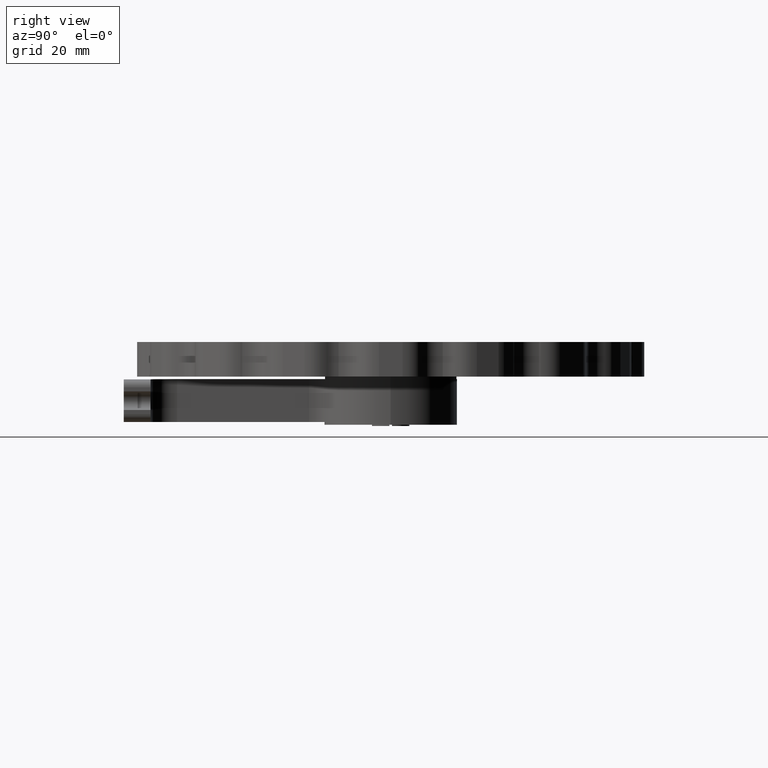
[diagram: clean part render]
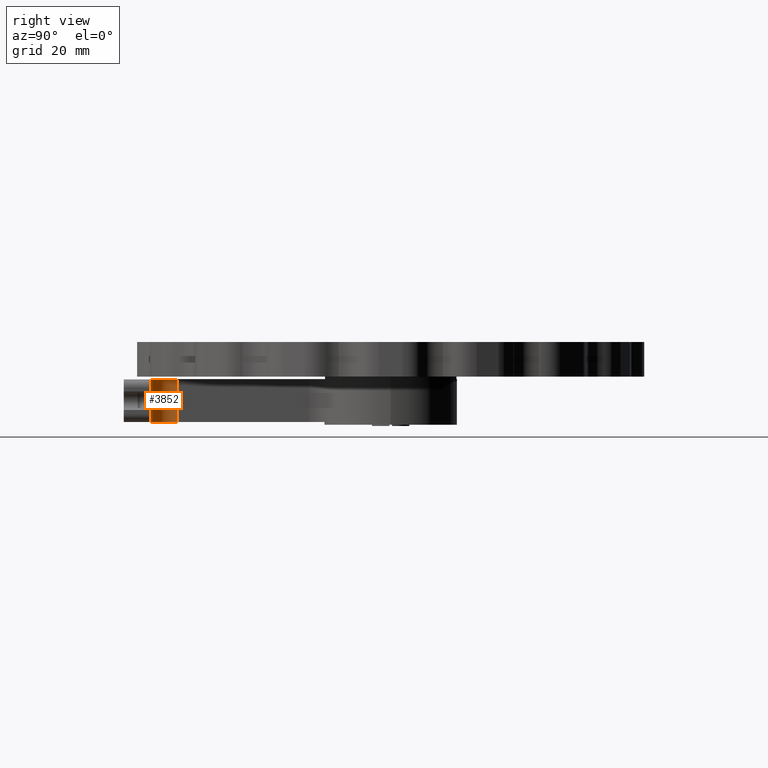
[diagram: same view with one face highlighted and labeled with its STEP entity id]
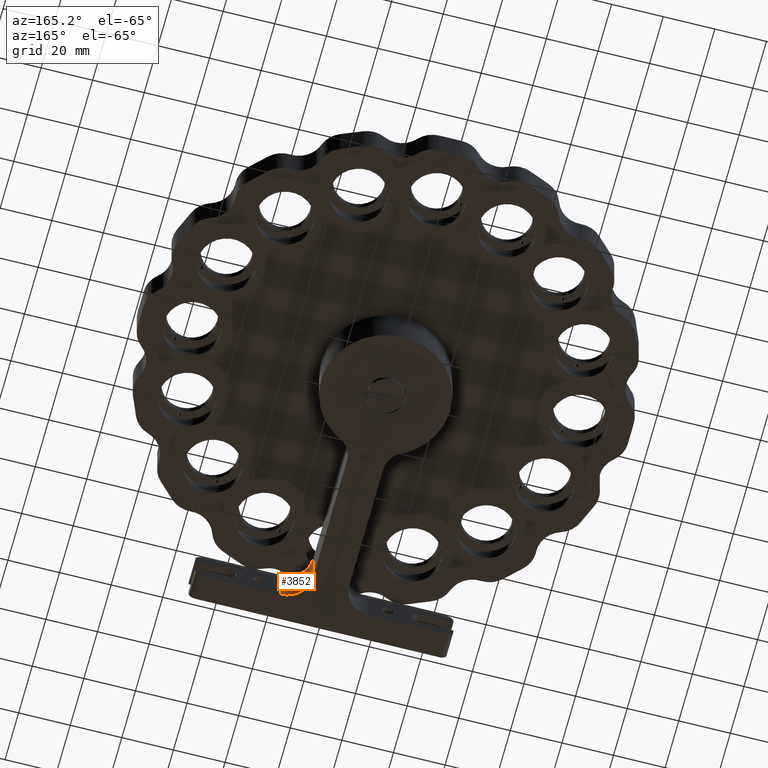
[diagram: same view with one face highlighted and labeled with its STEP entity id]
A machine part, right view. The second image highlights one B-rep face of the part: STEP entity #3852.
A second angle (auxiliary view) of the same face is appended — the face is thin or edge-on in the first view.
In plain terms, the highlighted cylindrical surface (edge-blend (fillet) strip) has radius 10 mm, axis along (0, 0, 1).
Its self-contained STEP definition (entity closure, byte-faithful):
#1642 = DIRECTION ( 'NONE',  ( 1.000000000000000000, 0.0000000000000000000, 0.0000000000000000000 ) ) ;
#3828 = AXIS2_PLACEMENT_3D ( 'NONE', #17962, #14059, #46028 ) ;
#3852 = ADVANCED_FACE ( 'NONE', ( #50735 ), #29199, .F. ) ;
#3928 = DIRECTION ( 'NONE',  ( 0.0000000000000000000, 0.0000000000000000000, 1.000000000000000000 ) ) ;
#7521 = DIRECTION ( 'NONE',  ( 1.000000000000000000, 0.0000000000000000000, 0.0000000000000000000 ) ) ;
#7605 = VECTOR ( 'NONE', #13979, 1000.000000000000000 ) ;
#11042 = ORIENTED_EDGE ( 'NONE', *, *, #20508, .F. ) ;
#12341 = CIRCLE ( 'NONE', #3828, 9.999999999999991100 ) ;
#13163 = CARTESIAN_POINT ( 'NONE',  ( 17.00000000000001400, -79.99999999999998600, -16.00000000000000000 ) ) ;
#13979 = DIRECTION ( 'NONE',  ( 0.0000000000000000000, 0.0000000000000000000, 1.000000000000000000 ) ) ;
#14059 = DIRECTION ( 'NONE',  ( -0.0000000000000000000, 0.0000000000000000000, 1.000000000000000000 ) ) ;
#14885 = ORIENTED_EDGE ( 'NONE', *, *, #24825, .F. ) ;
#15301 = AXIS2_PLACEMENT_3D ( 'NONE', #15867, #39542, #7521 ) ;
#15867 = CARTESIAN_POINT ( 'NONE',  ( 17.00000000000001400, -79.99999999999998600, -16.00000000000000000 ) ) ;
#17038 = CARTESIAN_POINT ( 'NONE',  ( 7.000000000000013300, -79.99999999999998600, 0.0000000000000000000 ) ) ;
#17602 = DIRECTION ( 'NONE',  ( -0.0000000000000000000, 0.0000000000000000000, 1.000000000000000000 ) ) ;
#17962 = CARTESIAN_POINT ( 'NONE',  ( 17.00000000000001400, -79.99999999999998600, 0.0000000000000000000 ) ) ;
#18420 = LINE ( 'NONE', #30766, #7605 ) ;
#20508 = EDGE_CURVE ( 'NONE', #35513, #31106, #37734, .T. ) ;
#23493 = LINE ( 'NONE', #48491, #46892 ) ;
#23717 = AXIS2_PLACEMENT_3D ( 'NONE', #13163, #17602, #1642 ) ;
#23912 = EDGE_CURVE ( 'NONE', #35513, #43258, #23493, .T. ) ;
#24825 = EDGE_CURVE ( 'NONE', #31106, #35987, #18420, .T. ) ;
#27470 = CARTESIAN_POINT ( 'NONE',  ( 17.00000000000001400, -89.99999999999997200, 0.0000000000000000000 ) ) ;
#27982 = ORIENTED_EDGE ( 'NONE', *, *, #23912, .T. ) ;
#29199 = CYLINDRICAL_SURFACE ( 'NONE', #15301, 9.999999999999991100 ) ;
#30766 = CARTESIAN_POINT ( 'NONE',  ( 17.00000000000001400, -89.99999999999997200, -16.00000000000000000 ) ) ;
#31106 = VERTEX_POINT ( 'NONE', #31218 ) ;
#31218 = CARTESIAN_POINT ( 'NONE',  ( 17.00000000000001400, -89.99999999999997200, -16.00000000000000000 ) ) ;
#35513 = VERTEX_POINT ( 'NONE', #40419 ) ;
#35987 = VERTEX_POINT ( 'NONE', #27470 ) ;
#37734 = CIRCLE ( 'NONE', #23717, 9.999999999999991100 ) ;
#37795 = EDGE_CURVE ( 'NONE', #43258, #35987, #12341, .T. ) ;
#39542 = DIRECTION ( 'NONE',  ( 0.0000000000000000000, 0.0000000000000000000, 1.000000000000000000 ) ) ;
#40419 = CARTESIAN_POINT ( 'NONE',  ( 7.000000000000013300, -79.99999999999998600, -16.00000000000000000 ) ) ;
#41383 = EDGE_LOOP ( 'NONE', ( #49753, #14885, #11042, #27982 ) ) ;
#43258 = VERTEX_POINT ( 'NONE', #17038 ) ;
#46028 = DIRECTION ( 'NONE',  ( 1.000000000000000000, 0.0000000000000000000, 0.0000000000000000000 ) ) ;
#46892 = VECTOR ( 'NONE', #3928, 1000.000000000000000 ) ;
#48491 = CARTESIAN_POINT ( 'NONE',  ( 7.000000000000013300, -79.99999999999998600, -16.00000000000000000 ) ) ;
#49753 = ORIENTED_EDGE ( 'NONE', *, *, #37795, .T. ) ;
#50735 = FACE_OUTER_BOUND ( 'NONE', #41383, .T. ) ;